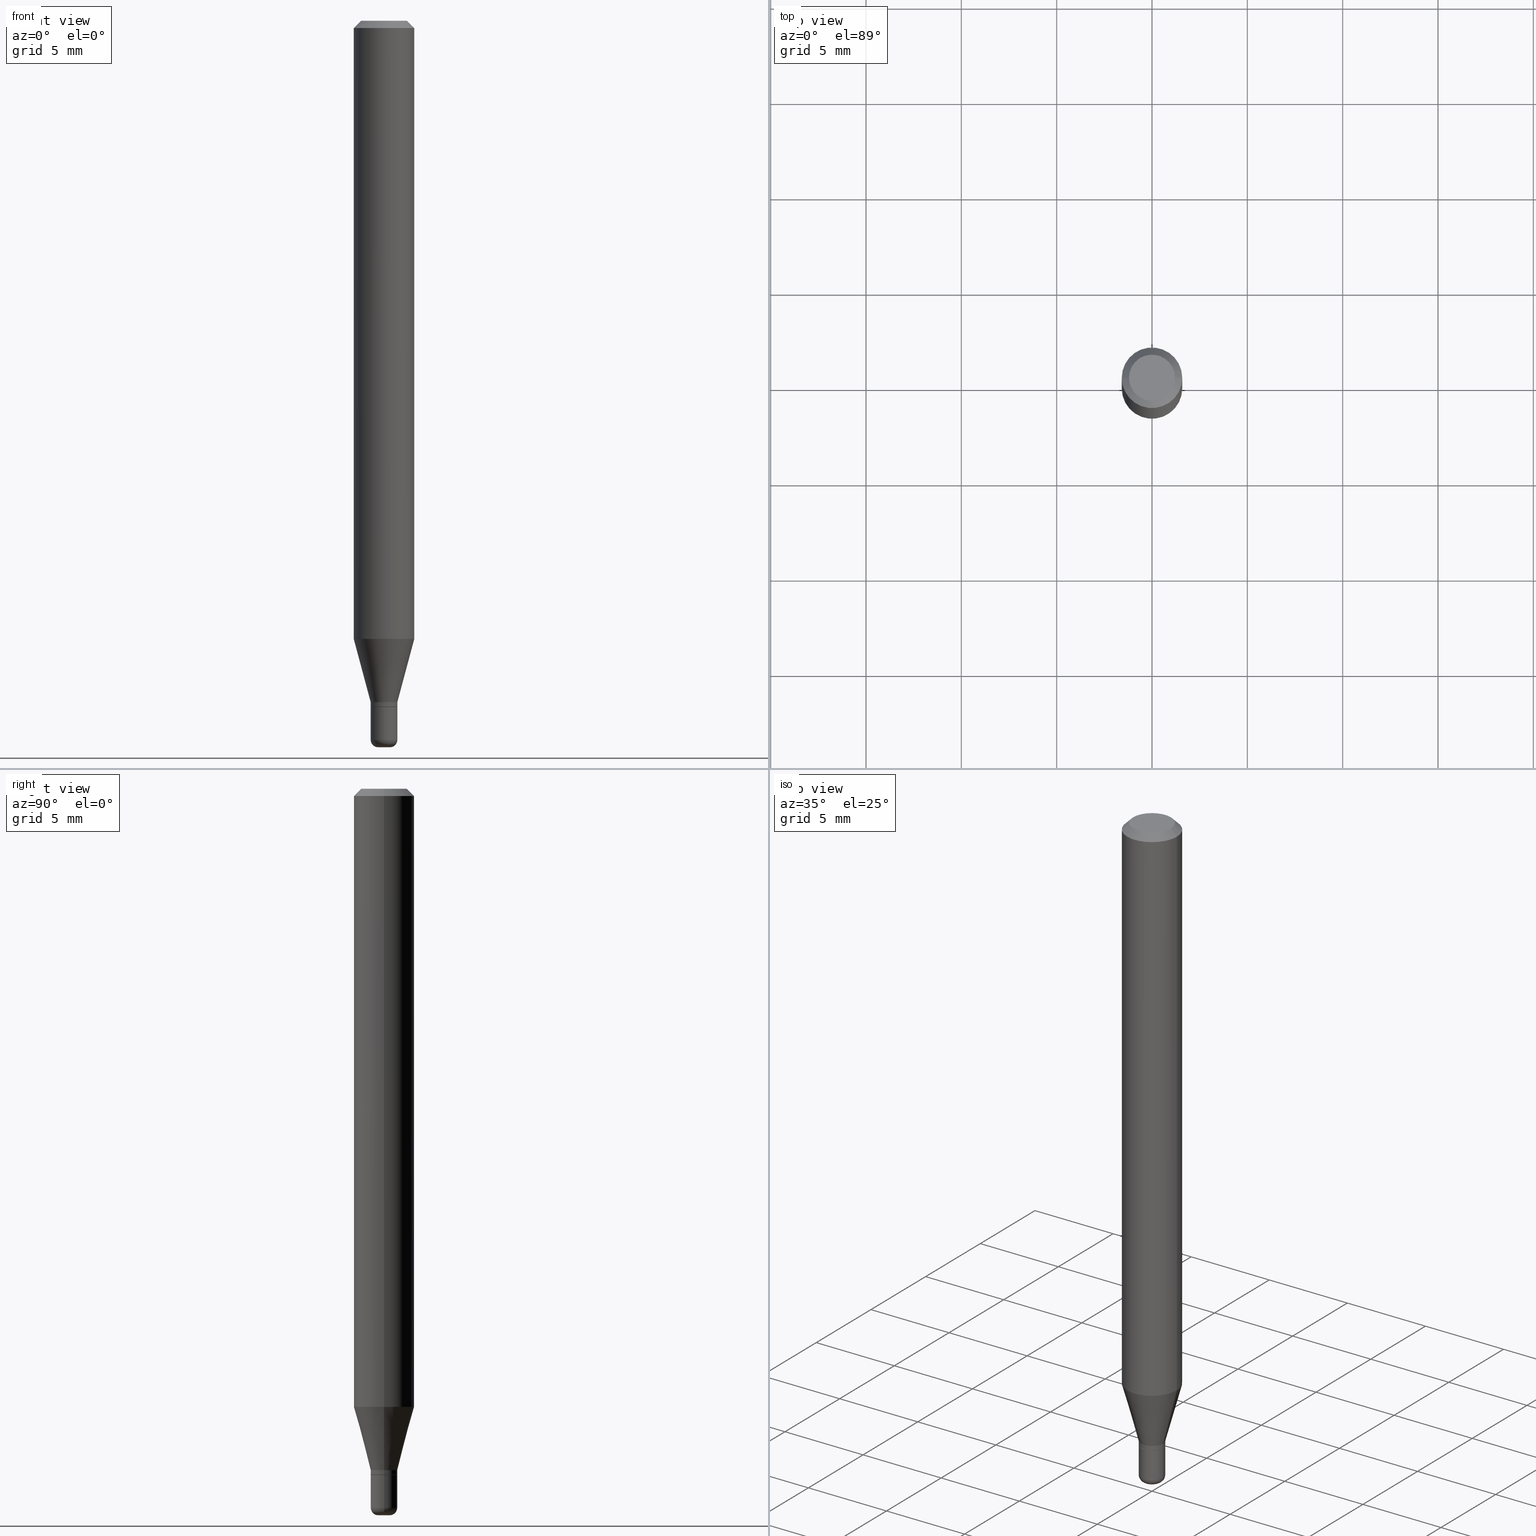
[diagram: canonical four-view strip — front | top / right | iso, engineering-drawing reading convention]
A machine part, canonical four-view strip (front | top / right | iso — engineering-drawing reading convention). The complete STEP part file that produces these views, byte-faithful:
ISO-10303-21;
HEADER;
FILE_DESCRIPTION (( 'STEP AP203' ),
    '1' );
FILE_NAME ('09156.STEP',
    '2024-02-29T22:46:03',
    ( '' ),
    ( '' ),
    'SwSTEP 2.0',
    'SolidWorks 2023',
    '' );
FILE_SCHEMA (( 'CONFIG_CONTROL_DESIGN' ));
ENDSEC;

DATA;
#1 = PRODUCT_DEFINITION ( 'UNKNOWN', '', #201, #255 ) ;
#2 = EDGE_CURVE ( 'NONE', #55, #220, #137, .T. ) ;
#3 = EDGE_LOOP ( 'NONE', ( #78, #169, #444, #175 ) ) ;
#4 = DIRECTION ( 'NONE',  ( 1.000000000000000000, -6.982962677686280121E-15, 0.000000000000000000 ) ) ;
#5 = AXIS2_PLACEMENT_3D ( 'NONE', #226, #158, #426 ) ;
#6 = SHAPE_DEFINITION_REPRESENTATION ( #211, #334 ) ;
#7 = ORIENTED_EDGE ( 'NONE', *, *, #319, .F. ) ;
#8 = EDGE_CURVE ( 'NONE', #309, #214, #240, .T. ) ;
#9 = VERTEX_POINT ( 'NONE', #450 ) ;
#10 = DIRECTION ( 'NONE',  ( -2.445468806185136597E-29, 3.491481338843145583E-15, 1.000000000000000000 ) ) ;
#11 = ADVANCED_FACE ( 'NONE', ( #105 ), #246, .T. ) ;
#12 = ORIENTED_EDGE ( 'NONE', *, *, #300, .F. ) ;
#13 = CARTESIAN_POINT ( 'NONE',  ( 0.06250000000000000000, -4.888073874380378612E-16, -0.01499999999999970281 ) ) ;
#14 = ORIENTED_EDGE ( 'NONE', *, *, #159, .F. ) ;
#15 = AXIS2_PLACEMENT_3D ( 'NONE', #508, #466, #344 ) ;
#16 = LINE ( 'NONE', #54, #470 ) ;
#17 = ORIENTED_EDGE ( 'NONE', *, *, #73, .F. ) ;
#18 = EDGE_CURVE ( 'NONE', #322, #280, #421, .T. ) ;
#19 = APPROVAL_DATE_TIME ( #186, #388 ) ;
#20 = LINE ( 'NONE', #182, #93 ) ;
#21 = CARTESIAN_POINT ( 'NONE',  ( 3.440774610302487541E-29, -4.912514243752305891E-15, -1.407000000000000028 ) ) ;
#22 = ORIENTED_EDGE ( 'NONE', *, *, #496, .F. ) ;
#23 = APPROVAL_DATE_TIME ( #221, #235 ) ;
#24 = DIRECTION ( 'NONE',  ( -2.445468806185136597E-29, 3.491481338843145583E-15, 1.000000000000000000 ) ) ;
#25 = VECTOR ( 'NONE', #510, 39.37007874015748143 ) ;
#26 = CIRCLE ( 'NONE', #147, 0.01499999999999998730 ) ;
#27 =( CONVERSION_BASED_UNIT ( 'INCH', #292 ) LENGTH_UNIT ( ) NAMED_UNIT ( #464 ) );
#28 = EDGE_CURVE ( 'NONE', #9, #115, #453, .T. ) ;
#29 = CYLINDRICAL_SURFACE ( 'NONE', #476, 0.02749999999999999667 ) ;
#30 = CARTESIAN_POINT ( 'NONE',  ( 0.06250000000000000000, -4.364351673553916694E-16, 3.047610484872459871E-30 ) ) ;
#31 = ORIENTED_EDGE ( 'NONE', *, *, #319, .T. ) ;
#32 = CARTESIAN_POINT ( 'NONE',  ( 0.000000000000000000, 0.000000000000000000, 0.000000000000000000 ) ) ;
#33 = CARTESIAN_POINT ( 'NONE',  ( -0.02699999999999999623, -4.752933291311399907E-15, -1.417000000000000259 ) ) ;
#34 = ORIENTED_EDGE ( 'NONE', *, *, #289, .F. ) ;
#35 = CALENDAR_DATE ( 2024, 29, 2 ) ;
#36 = CARTESIAN_POINT ( 'NONE',  ( -0.02699999999999999623, -4.755582518485511109E-15, -1.417000000000000259 ) ) ;
#37 = AXIS2_PLACEMENT_3D ( 'NONE', #302, #86, #311 ) ;
#38 = CARTESIAN_POINT ( 'NONE',  ( 3.668203209277632395E-31, -5.237222008264614861E-17, -0.01499999999999970281 ) ) ;
#39 = EDGE_CURVE ( 'NONE', #472, #108, #242, .T. ) ;
#40 = VERTEX_POINT ( 'NONE', #404 ) ;
#41 = ORIENTED_EDGE ( 'NONE', *, *, #276, .F. ) ;
#42 = DIRECTION ( 'NONE',  ( -1.000000000000000000, 6.982962677686266711E-15, 0.000000000000000000 ) ) ;
#43 = LINE ( 'NONE', #229, #397 ) ;
#44 = FACE_OUTER_BOUND ( 'NONE', #269, .T. ) ;
#45 = AXIS2_PLACEMENT_3D ( 'NONE', #456, #416, #111 ) ;
#46 = CARTESIAN_POINT ( 'NONE',  ( 3.465229298364339647E-29, -4.947429057140738329E-15, -1.417000000000000259 ) ) ;
#47 = LINE ( 'NONE', #132, #490 ) ;
#48 = CC_DESIGN_SECURITY_CLASSIFICATION ( #52, ( #201 ) ) ;
#49 = ORIENTED_EDGE ( 'NONE', *, *, #8, .F. ) ;
#50 = ORIENTED_EDGE ( 'NONE', *, *, #85, .T. ) ;
#51 = CYLINDRICAL_SURFACE ( 'NONE', #82, 0.06250000000000000000 ) ;
#52 = SECURITY_CLASSIFICATION ( '', '', #117 ) ;
#53 = EDGE_LOOP ( 'NONE', ( #199, #119, #380, #393 ) ) ;
#54 = CARTESIAN_POINT ( 'NONE',  ( 0.02750000000000000014, -1.920314736363723444E-16, 1.340948613343882413E-30 ) ) ;
#55 = VERTEX_POINT ( 'NONE', #13 ) ;
#56 = AXIS2_PLACEMENT_3D ( 'NONE', #46, #231, #135 ) ;
#57 = EDGE_CURVE ( 'NONE', #40, #374, #498, .T. ) ;
#58 = ORIENTED_EDGE ( 'NONE', *, *, #103, .F. ) ;
#59 = ORIENTED_EDGE ( 'NONE', *, *, #124, .F. ) ;
#60 = CARTESIAN_POINT ( 'NONE',  ( 3.668203209277632395E-31, -5.237222008264614861E-17, -0.01499999999999970281 ) ) ;
#61 = ORGANIZATION ( 'UNSPECIFIED', 'UNSPECIFIED', '' ) ;
#62 = DIRECTION ( 'NONE',  ( -1.000000000000000000, 6.982962677686265922E-15, -4.876176775795935793E-29 ) ) ;
#63 = EDGE_LOOP ( 'NONE', ( #471, #485, #17, #266 ) ) ;
#64 = ORIENTED_EDGE ( 'NONE', *, *, #85, .F. ) ;
#65 = VECTOR ( 'NONE', #197, 39.37007874015748854 ) ;
#66 = EDGE_LOOP ( 'NONE', ( #238, #410 ) ) ;
#67 = DIRECTION ( 'NONE',  ( -2.445468806185136597E-29, 3.491481338843145583E-15, 1.000000000000000000 ) ) ;
#68 = EDGE_LOOP ( 'NONE', ( #208, #31, #83, #64 ) ) ;
#69 = CARTESIAN_POINT ( 'NONE',  ( -0.02749999999999998973, -4.870740170327377186E-15, -1.485000000000000098 ) ) ;
#70 = PERSON_AND_ORGANIZATION ( #333, #61 ) ;
#71 = CARTESIAN_POINT ( 'NONE',  ( 3.631521177184928138E-29, -5.184849788182071492E-15, -1.485000000000000098 ) ) ;
#72 = DIRECTION ( 'NONE',  ( -2.445468806185136597E-29, 3.491481338843145583E-15, 1.000000000000000000 ) ) ;
#73 = EDGE_CURVE ( 'NONE', #204, #472, #227, .T. ) ;
#74 = ADVANCED_FACE ( 'NONE', ( #173 ), #400, .T. ) ;
#75 = APPROVAL_STATUS ( 'not_yet_approved' ) ;
#76 = CARTESIAN_POINT ( 'NONE',  ( 3.582686580359766038E-29, -5.359686688179453325E-15, -1.500000000000000222 ) ) ;
#77 = LINE ( 'NONE', #30, #337 ) ;
#78 = ORIENTED_EDGE ( 'NONE', *, *, #127, .T. ) ;
#79 = AXIS2_PLACEMENT_3D ( 'NONE', #60, #10, #285 ) ;
#80 = VECTOR ( 'NONE', #320, 39.37007874015748143 ) ;
#81 = DIRECTION ( 'NONE',  ( 1.000000000000000000, -6.982962677686265922E-15, 4.876176775795935793E-29 ) ) ;
#82 = AXIS2_PLACEMENT_3D ( 'NONE', #348, #359, #428 ) ;
#83 = ORIENTED_EDGE ( 'NONE', *, *, #2, .T. ) ;
#84 = CARTESIAN_POINT ( 'NONE',  ( -0.02750000000000000708, -4.364738262031039467E-15, -1.407000000000000028 ) ) ;
#85 = EDGE_CURVE ( 'NONE', #9, #220, #178, .T. ) ;
#86 = DIRECTION ( 'NONE',  ( -2.438088387897960049E-29, 3.491481338843145188E-15, 1.000000000000000000 ) ) ;
#87 = ADVANCED_FACE ( 'NONE', ( #403 ), #179, .T. ) ;
#88 = CARTESIAN_POINT ( 'NONE',  ( 0.02699999999999999623, -5.135969049438267025E-15, -1.417000000000000259 ) ) ;
#89 = CONICAL_SURFACE ( 'NONE', #402, 0.06250000000000000000, 0.7853981633974488341 ) ;
#90 = EDGE_LOOP ( 'NONE', ( #7, #200, #50, #130 ) ) ;
#91 = CALENDAR_DATE ( 2024, 29, 2 ) ;
#92 = DIRECTION ( 'NONE',  ( -2.445468806185136597E-29, 3.491481338843145583E-15, 1.000000000000000000 ) ) ;
#93 = VECTOR ( 'NONE', #332, 39.37007874015748854 ) ;
#94 = CARTESIAN_POINT ( 'NONE',  ( 3.121343126147216904E-29, -4.456450742493864567E-15, -1.276378221735089635 ) ) ;
#95 = CC_DESIGN_APPROVAL ( #235, ( #1 ) ) ;
#96 = ORIENTED_EDGE ( 'NONE', *, *, #347, .T. ) ;
#97 = VECTOR ( 'NONE', #253, 39.37007874015748143 ) ;
#98 = AXIS2_PLACEMENT_3D ( 'NONE', #76, #251, #81 ) ;
#99 = EDGE_LOOP ( 'NONE', ( #457, #174, #291, #194 ) ) ;
#100 = ADVANCED_FACE ( 'NONE', ( #407 ), #294, .T. ) ;
#101 = MANIFOLD_SOLID_BREP ( 'Body-Move/Copy2[1]', #106 ) ;
#102 = DIRECTION ( 'NONE',  ( -2.445468806185136877E-29, 3.491481338843145188E-15, 1.000000000000000000 ) ) ;
#103 = EDGE_CURVE ( 'NONE', #374, #445, #488, .T. ) ;
#104 = DIRECTION ( 'NONE',  ( 1.000000000000000000, -6.982962677686265922E-15, 4.876176775795935232E-29 ) ) ;
#105 = FACE_OUTER_BOUND ( 'NONE', #281, .T. ) ;
#106 = CLOSED_SHELL ( 'NONE', ( #100, #171, #440, #74, #487, #166 ) ) ;
#107 = AXIS2_PLACEMENT_3D ( 'NONE', #431, #394, #42 ) ;
#108 = VERTEX_POINT ( 'NONE', #84 ) ;
#109 = FACE_OUTER_BOUND ( 'NONE', #230, .T. ) ;
#110 = APPROVAL_ROLE ( '' ) ;
#111 = DIRECTION ( 'NONE',  ( 1.000000000000000000, -6.982962677686262766E-15, 0.000000000000000000 ) ) ;
#112 = ORIENTED_EDGE ( 'NONE', *, *, #482, .T. ) ;
#113 = PERSON_AND_ORGANIZATION_ROLE ( 'design_supplier' ) ;
#114 = PLANE ( 'NONE',  #98 ) ;
#115 = VERTEX_POINT ( 'NONE', #378 ) ;
#116 = EDGE_CURVE ( 'NONE', #309, #204, #298, .T. ) ;
#117 = SECURITY_CLASSIFICATION_LEVEL ( 'unclassified' ) ;
#118 = DIRECTION ( 'NONE',  ( 1.000000000000000000, -6.982962677686282488E-15, 0.000000000000000000 ) ) ;
#119 = ORIENTED_EDGE ( 'NONE', *, *, #159, .T. ) ;
#120 = AXIS2_PLACEMENT_3D ( 'NONE', #441, #290, #243 ) ;
#121 = AXIS2_PLACEMENT_3D ( 'NONE', #71, #190, #118 ) ;
#122 =( NAMED_UNIT ( * ) SI_UNIT ( $, .STERADIAN. ) SOLID_ANGLE_UNIT ( ) );
#123 = DIRECTION ( 'NONE',  ( -2.445468806185136597E-29, 3.491481338843145583E-15, 1.000000000000000000 ) ) ;
#124 = EDGE_CURVE ( 'NONE', #413, #445, #517, .T. ) ;
#126 = DIRECTION ( 'NONE',  ( -1.000000000000000000, 7.105427357600997126E-15, 0.000000000000000000 ) ) ;
#125 = CC_DESIGN_PERSON_AND_ORGANIZATION_ASSIGNMENT ( #310, #273, ( #1 ) ) ;
#127 = EDGE_CURVE ( 'NONE', #280, #322, #247, .T. ) ;
#128 = FACE_OUTER_BOUND ( 'NONE', #358, .T. ) ;
#129 = CARTESIAN_POINT ( 'NONE',  ( 0.02749999999999999667, -1.920314736363722951E-16, 1.340948613343882063E-30 ) ) ;
#130 = ORIENTED_EDGE ( 'NONE', *, *, #467, .T. ) ;
#131 = AXIS2_PLACEMENT_3D ( 'NONE', #148, #325, #282 ) ;
#132 = CARTESIAN_POINT ( 'NONE',  ( -0.06250000000000000000, 4.440892098500626162E-16, -3.074334431409316114E-30 ) ) ;
#133 = AXIS2_PLACEMENT_3D ( 'NONE', #275, #317, #396 ) ;
#134 = PERSON_AND_ORGANIZATION ( #333, #61 ) ;
#135 = DIRECTION ( 'NONE',  ( 1.000000000000000000, -6.982962677686261977E-15, 0.000000000000000000 ) ) ;
#136 = EDGE_CURVE ( 'NONE', #143, #40, #422, .T. ) ;
#137 = CIRCLE ( 'NONE', #79, 0.06250000000000000000 ) ;
#138 = CIRCLE ( 'NONE', #133, 0.01250000000000000590 ) ;
#139 = ORIENTED_EDGE ( 'NONE', *, *, #467, .F. ) ;
#140 = EDGE_LOOP ( 'NONE', ( #58, #181, #484, #22 ) ) ;
#141 = DIRECTION ( 'NONE',  ( -2.445468806185136597E-29, 3.491481338843145583E-15, 1.000000000000000000 ) ) ;
#142 = AXIS2_PLACEMENT_3D ( 'NONE', #345, #160, #260 ) ;
#143 = VERTEX_POINT ( 'NONE', #306 ) ;
#144 = DIRECTION ( 'NONE',  ( -0.7071067811865479058, 2.468850131082261005E-15, -0.7071067811865471286 ) ) ;
#145 = CC_DESIGN_PERSON_AND_ORGANIZATION_ASSIGNMENT ( #134, #415, ( #52 ) ) ;
#146 = CARTESIAN_POINT ( 'NONE',  ( 3.631521177184928138E-29, -5.184849788182071492E-15, -1.485000000000000098 ) ) ;
#147 = AXIS2_PLACEMENT_3D ( 'NONE', #420, #346, #126 ) ;
#148 = CARTESIAN_POINT ( 'NONE',  ( -6.680649051745406845E-45, 9.538196290434862081E-31, 2.731847993664263218E-16 ) ) ;
#149 = DIRECTION ( 'NONE',  ( 1.000000000000000000, -6.982962677686262766E-15, 0.000000000000000000 ) ) ;
#150 =( NAMED_UNIT ( * ) PLANE_ANGLE_UNIT ( ) SI_UNIT ( $, .RADIAN. ) );
#151 = AXIS2_PLACEMENT_3D ( 'NONE', #437, #405, #62 ) ;
#152 = DIRECTION ( 'NONE',  ( -2.445468806185136597E-29, 3.491481338843145583E-15, 1.000000000000000000 ) ) ;
#153 = APPROVAL_ROLE ( '' ) ;
#154 = DIRECTION ( 'NONE',  ( 1.000000000000000000, -6.982962677686261977E-15, 0.000000000000000000 ) ) ;
#155 = APPROVAL_DATE_TIME ( #503, #363 ) ;
#156 = CARTESIAN_POINT ( 'NONE',  ( 3.440774610302487541E-29, -4.912514243752305891E-15, -1.407000000000000028 ) ) ;
#157 = PERSON_AND_ORGANIZATION ( #333, #61 ) ;
#158 = DIRECTION ( 'NONE',  ( -6.982962677686266711E-15, -1.000000000000000000, 3.491481338843145583E-15 ) ) ;
#159 = EDGE_CURVE ( 'NONE', #507, #374, #26, .T. ) ;
#160 = DIRECTION ( 'NONE',  ( 0.000000000000000000, 0.000000000000000000, 1.000000000000000000 ) ) ;
#161 = CARTESIAN_POINT ( 'NONE',  ( 3.440774610302487541E-29, -4.912514243752305891E-15, -1.407000000000000028 ) ) ;
#162 = ADVANCED_FACE ( 'NONE', ( #469 ), #256, .F. ) ;
#163 = CC_DESIGN_PERSON_AND_ORGANIZATION_ASSIGNMENT ( #468, #113, ( #201 ) ) ;
#164 = FACE_OUTER_BOUND ( 'NONE', #90, .T. ) ;
#165 = CARTESIAN_POINT ( 'NONE',  ( -0.01250000000000000590, -5.068927351071375460E-15, -1.500000000000000222 ) ) ;
#166 = ADVANCED_FACE ( 'NONE', ( #261 ), #114, .F. ) ;
#167 = CIRCLE ( 'NONE', #446, 0.02750000000000000014 ) ;
#168 = DIRECTION ( 'NONE',  ( -2.445468806185136597E-29, 3.491481338843145583E-15, 1.000000000000000000 ) ) ;
#169 = ORIENTED_EDGE ( 'NONE', *, *, #312, .T. ) ;
#170 =( LENGTH_UNIT ( ) NAMED_UNIT ( * ) SI_UNIT ( $, .METRE. ) );
#171 = ADVANCED_FACE ( 'NONE', ( #461 ), #29, .T. ) ;
#172 = EDGE_CURVE ( 'NONE', #214, #472, #459, .T. ) ;
#173 = FACE_OUTER_BOUND ( 'NONE', #140, .T. ) ;
#174 = ORIENTED_EDGE ( 'NONE', *, *, #276, .T. ) ;
#175 = ORIENTED_EDGE ( 'NONE', *, *, #482, .F. ) ;
#176 = CC_DESIGN_PERSON_AND_ORGANIZATION_ASSIGNMENT ( #341, #225, ( #449 ) ) ;
#177 = APPROVAL_PERSON_ORGANIZATION ( #372, #235, #335 ) ;
#178 = LINE ( 'NONE', #323, #218 ) ;
#179 = CYLINDRICAL_SURFACE ( 'NONE', #270, 0.02750000000000000014 ) ;
#180 = CLOSED_SHELL ( 'NONE', ( #87, #239, #366, #352, #451, #234, #506, #430, #265, #162, #362, #11 ) ) ;
#181 = ORIENTED_EDGE ( 'NONE', *, *, #215, .T. ) ;
#182 = CARTESIAN_POINT ( 'NONE',  ( 0.02750000000000000708, -5.104545717388678383E-15, -1.407000000000000028 ) ) ;
#183 = UNCERTAINTY_MEASURE_WITH_UNIT (LENGTH_MEASURE( 1.000000000000000082E-05 ), #27, 'distance_accuracy_value', 'NONE');
#184 = APPROVAL_STATUS ( 'not_yet_approved' ) ;
#185 = DIRECTION ( 'NONE',  ( 1.000000000000000000, -6.982962677686277755E-15, 0.000000000000000000 ) ) ;
#186 = DATE_AND_TIME ( #495, #315 ) ;
#187 = DIRECTION ( 'NONE',  ( -2.445468806185136597E-29, 3.491481338843145583E-15, 1.000000000000000000 ) ) ;
#188 = DIRECTION ( 'NONE',  ( -2.445468806185136877E-29, 3.491481338843145188E-15, 1.000000000000000000 ) ) ;
#189 = DIRECTION ( 'NONE',  ( 2.438088387897960049E-29, -3.491481338843145188E-15, -1.000000000000000000 ) ) ;
#190 = DIRECTION ( 'NONE',  ( -2.445468806185136597E-29, 3.491481338843145583E-15, 1.000000000000000000 ) ) ;
#191 = AXIS2_PLACEMENT_3D ( 'NONE', #94, #284, #149 ) ;
#192 = CIRCLE ( 'NONE', #56, 0.02699999999999999623 ) ;
#193 = EDGE_CURVE ( 'NONE', #409, #280, #20, .T. ) ;
#194 = ORIENTED_EDGE ( 'NONE', *, *, #18, .F. ) ;
#195 = AXIS2_PLACEMENT_3D ( 'NONE', #293, #382, #264 ) ;
#196 = CARTESIAN_POINT ( 'NONE',  ( 3.668203209277704895E-29, -5.237222008264718177E-15, -1.500000000000000222 ) ) ;
#197 = DIRECTION ( 'NONE',  ( -0.2588190451025211281, 5.211531920934547886E-15, 0.9659258262890679791 ) ) ;
#198 = ORIENTED_EDGE ( 'NONE', *, *, #127, .F. ) ;
#199 = ORIENTED_EDGE ( 'NONE', *, *, #436, .T. ) ;
#200 = ORIENTED_EDGE ( 'NONE', *, *, #28, .F. ) ;
#201 = PRODUCT_DEFINITION_FORMATION_WITH_SPECIFIED_SOURCE ( 'ANY', '', #449, .NOT_KNOWN. ) ;
#202 = ORIENTED_EDGE ( 'NONE', *, *, #136, .T. ) ;
#203 = CIRCLE ( 'NONE', #121, 0.02749999999999998973 ) ;
#204 = VERTEX_POINT ( 'NONE', #377 ) ;
#205 = DIRECTION ( 'NONE',  ( 1.000000000000000000, -6.982962677686266711E-15, 4.876176775795935793E-29 ) ) ;
#206 = DIRECTION ( 'NONE',  ( 1.000000000000000000, -6.982962677686261977E-15, 0.000000000000000000 ) ) ;
#207 = ORIENTED_EDGE ( 'NONE', *, *, #300, .T. ) ;
#208 = ORIENTED_EDGE ( 'NONE', *, *, #395, .F. ) ;
#209 = AXIS2_PLACEMENT_3D ( 'NONE', #448, #213, #493 ) ;
#210 = VECTOR ( 'NONE', #497, 39.37007874015748143 ) ;
#211 = PRODUCT_DEFINITION_SHAPE ( 'NONE', 'NONE',  #1 ) ;
#212 = CARTESIAN_POINT ( 'NONE',  ( 3.668203209277632395E-31, -5.237222008264614861E-17, -0.01499999999999970281 ) ) ;
#213 = DIRECTION ( 'NONE',  ( -2.445468806185136597E-29, 3.491481338843145583E-15, 1.000000000000000000 ) ) ;
#214 = VERTEX_POINT ( 'NONE', #33 ) ;
#215 = EDGE_CURVE ( 'NONE', #374, #40, #203, .T. ) ;
#216 = FACE_OUTER_BOUND ( 'NONE', #99, .T. ) ;
#217 = DIRECTION ( 'NONE',  ( 1.000000000000000000, -6.982962677686265922E-15, 4.876176775795935232E-29 ) ) ;
#218 = VECTOR ( 'NONE', #144, 39.37007874015748143 ) ;
#219 = AXIS2_PLACEMENT_3D ( 'NONE', #504, #189, #342 ) ;
#220 = VERTEX_POINT ( 'NONE', #512 ) ;
#221 = DATE_AND_TIME ( #35, #274 ) ;
#222 = FACE_OUTER_BOUND ( 'NONE', #66, .T. ) ;
#223 = DIRECTION ( 'NONE',  ( -2.445468806185136597E-29, 3.491481338843145583E-15, 1.000000000000000000 ) ) ;
#224 = ORIENTED_EDGE ( 'NONE', *, *, #349, .T. ) ;
#225 = PERSON_AND_ORGANIZATION_ROLE ( 'design_owner' ) ;
#226 = CARTESIAN_POINT ( 'NONE',  ( 0.01250000000000000069, -5.272136821653149826E-15, -1.485000000000000098 ) ) ;
#227 = CIRCLE ( 'NONE', #307, 0.02749999999999999667 ) ;
#228 = CIRCLE ( 'NONE', #429, 0.01250000000000000590 ) ;
#229 = CARTESIAN_POINT ( 'NONE',  ( 0.06250000000000000000, -4.811533449433669144E-16, -0.01499999999999970281 ) ) ;
#230 = EDGE_LOOP ( 'NONE', ( #489, #236, #384, #12 ) ) ;
#231 = DIRECTION ( 'NONE',  ( -2.445468806185136597E-29, 3.491481338843145583E-15, 1.000000000000000000 ) ) ;
#232 = CARTESIAN_POINT ( 'NONE',  ( -0.02750000000000000708, -4.717114991418277772E-15, -1.407000000000000028 ) ) ;
#233 = CIRCLE ( 'NONE', #241, 0.04750000000000000749 ) ;
#234 = ADVANCED_FACE ( 'NONE', ( #216 ), #369, .T. ) ;
#235 = APPROVAL ( #386, 'UNSPECIFIED' ) ;
#236 = ORIENTED_EDGE ( 'NONE', *, *, #389, .T. ) ;
#237 = CARTESIAN_POINT ( 'NONE',  ( 0.000000000000000000, 0.000000000000000000, 0.000000000000000000 ) ) ;
#238 = ORIENTED_EDGE ( 'NONE', *, *, #28, .T. ) ;
#239 = ADVANCED_FACE ( 'NONE', ( #336 ), #308, .T. ) ;
#240 = CIRCLE ( 'NONE', #354, 0.02699999999999999623 ) ;
#241 = AXIS2_PLACEMENT_3D ( 'NONE', #425, #168, #313 ) ;
#242 = LINE ( 'NONE', #244, #277 ) ;
#243 = DIRECTION ( 'NONE',  ( 1.000000000000000000, -6.982962677686282488E-15, 0.000000000000000000 ) ) ;
#244 = CARTESIAN_POINT ( 'NONE',  ( -0.02750000000000000014, 1.953992523340275521E-16, -1.352707149820099181E-30 ) ) ;
#245 = ORIENTED_EDGE ( 'NONE', *, *, #124, .T. ) ;
#246 = CYLINDRICAL_SURFACE ( 'NONE', #209, 0.02750000000000000014 ) ;
#247 = CIRCLE ( 'NONE', #45, 0.06250000000000000000 ) ;
#248 = FACE_OUTER_BOUND ( 'NONE', #296, .T. ) ;
#249 = DIRECTION ( 'NONE',  ( 2.445468806185136597E-29, -3.491481338843145583E-15, -1.000000000000000000 ) ) ;
#250 = PERSON_AND_ORGANIZATION ( #333, #61 ) ;
#251 = DIRECTION ( 'NONE',  ( -2.438088387897960049E-29, 3.491481338843145188E-15, 1.000000000000000000 ) ) ;
#252 = CALENDAR_DATE ( 2024, 29, 2 ) ;
#253 = DIRECTION ( 'NONE',  ( 0.7071067811864267805, -2.468850131080992517E-15, 0.7071067811866682540 ) ) ;
#254 = ORIENTED_EDGE ( 'NONE', *, *, #103, .T. ) ;
#255 = DESIGN_CONTEXT ( 'detailed design', #479, 'design' ) ;
#256 = PLANE ( 'NONE',  #37 ) ;
#257 = CONICAL_SURFACE ( 'NONE', #107, 0.06250000000000000000, 0.7853981633974488341 ) ;
#258 = ORIENTED_EDGE ( 'NONE', *, *, #18, .T. ) ;
#259 = CYLINDRICAL_SURFACE ( 'NONE', #316, 0.06250000000000000000 ) ;
#260 = DIRECTION ( 'NONE',  ( 1.000000000000000000, 0.000000000000000000, 0.000000000000000000 ) ) ;
#261 = FACE_OUTER_BOUND ( 'NONE', #406, .T. ) ;
#262 = DIRECTION ( 'NONE',  ( -2.445468806185136597E-29, 3.491481338843145583E-15, 1.000000000000000000 ) ) ;
#263 = CC_DESIGN_APPROVAL ( #363, ( #52 ) ) ;
#264 = DIRECTION ( 'NONE',  ( 1.000000000000000000, -6.982962677686279332E-15, 0.000000000000000000 ) ) ;
#265 = ADVANCED_FACE ( 'NONE', ( #222 ), #339, .F. ) ;
#266 = ORIENTED_EDGE ( 'NONE', *, *, #116, .F. ) ;
#267 = CARTESIAN_POINT ( 'NONE',  ( 0.02750000000000000708, -5.104545717388678383E-15, -1.407000000000000028 ) ) ;
#268 = CARTESIAN_POINT ( 'NONE',  ( 0.06250000000000000000, -4.892885909849255447E-15, -1.276378221735089635 ) ) ;
#269 = EDGE_LOOP ( 'NONE', ( #245, #370 ) ) ;
#270 = AXIS2_PLACEMENT_3D ( 'NONE', #237, #141, #205 ) ;
#271 = TOROIDAL_SURFACE ( 'NONE', #379, 0.01250000000000000069, 0.01499999999999998557 ) ;
#272 = CARTESIAN_POINT ( 'NONE',  ( -0.06250000000000000000, -4.012361532643800373E-15, -1.276378221735089635 ) ) ;
#273 = PERSON_AND_ORGANIZATION_ROLE ( 'creator' ) ;
#274 = LOCAL_TIME ( 17, 46, 3.000000000000000000, #460 ) ;
#275 = CARTESIAN_POINT ( 'NONE',  ( 3.668203209277704895E-29, -5.237222008264718177E-15, -1.500000000000000222 ) ) ;
#276 = EDGE_CURVE ( 'NONE', #108, #409, #295, .T. ) ;
#277 = VECTOR ( 'NONE', #102, 39.37007874015748143 ) ;
#278 = AXIS2_PLACEMENT_3D ( 'NONE', #156, #516, #318 ) ;
#279 = ORIENTED_EDGE ( 'NONE', *, *, #399, .F. ) ;
#280 = VERTEX_POINT ( 'NONE', #268 ) ;
#281 = EDGE_LOOP ( 'NONE', ( #361, #207, #224, #41 ) ) ;
#282 = DIRECTION ( 'NONE',  ( 1.000000000000000000, -6.982962677686266711E-15, 4.852736867747365086E-29 ) ) ;
#283 = DIRECTION ( 'NONE',  ( 1.000000000000000000, -6.982962677686277755E-15, 0.000000000000000000 ) ) ;
#284 = DIRECTION ( 'NONE',  ( -2.445468806185136597E-29, 3.491481338843145583E-15, 1.000000000000000000 ) ) ;
#285 = DIRECTION ( 'NONE',  ( 1.000000000000000000, -6.982962677686266711E-15, 0.000000000000000000 ) ) ;
#286 = CARTESIAN_POINT ( 'NONE',  ( -0.02750000000000000014, -4.870740170327377186E-15, -1.417000000000000259 ) ) ;
#287 = ORIENTED_EDGE ( 'NONE', *, *, #389, .F. ) ;
#288 = DIRECTION ( 'NONE',  ( 1.000000000000000000, -6.982962677686279332E-15, 0.000000000000000000 ) ) ;
#289 = EDGE_CURVE ( 'NONE', #40, #413, #439, .T. ) ;
#290 = DIRECTION ( 'NONE',  ( -2.445468806185136597E-29, 3.491481338843145583E-15, 1.000000000000000000 ) ) ;
#291 = ORIENTED_EDGE ( 'NONE', *, *, #193, .T. ) ;
#292 = LENGTH_MEASURE_WITH_UNIT ( LENGTH_MEASURE( 0.02539999999999999897 ), #170 );
#293 = CARTESIAN_POINT ( 'NONE',  ( 3.465229298364339647E-29, -4.947429057140738329E-15, -1.417000000000000259 ) ) ;
#294 = TOROIDAL_SURFACE ( 'NONE', #401, 0.01250000000000000069, 0.01499999999999998557 ) ;
#295 = CIRCLE ( 'NONE', #278, 0.02750000000000000708 ) ;
#296 = EDGE_LOOP ( 'NONE', ( #364, #96, #198, #340 ) ) ;
#297 = DIRECTION ( 'NONE',  ( 1.000000000000000000, -6.982962677686277755E-15, 0.000000000000000000 ) ) ;
#298 = LINE ( 'NONE', #473, #97 ) ;
#299 = CARTESIAN_POINT ( 'NONE',  ( -0.02749999999999999667, -4.750284064137287918E-15, -1.416500000000000092 ) ) ;
#300 = EDGE_CURVE ( 'NONE', #472, #204, #518, .T. ) ;
#301 = MECHANICAL_CONTEXT ( 'NONE', #443, 'mechanical' ) ;
#302 = CARTESIAN_POINT ( 'NONE',  ( 3.465229298364339647E-29, -4.947429057140738329E-15, -1.417000000000000259 ) ) ;
#303 = CARTESIAN_POINT ( 'NONE',  ( 3.465229298364339647E-29, -4.947429057140738329E-15, -1.417000000000000259 ) ) ;
#304 = DIRECTION ( 'NONE',  ( -2.445468806185136877E-29, 3.491481338843145188E-15, 1.000000000000000000 ) ) ;
#305 = PERSON_AND_ORGANIZATION_ROLE ( 'creator' ) ;
#306 = CARTESIAN_POINT ( 'NONE',  ( 0.01250000000000000590, -5.324509041735797299E-15, -1.500000000000000222 ) ) ;
#307 = AXIS2_PLACEMENT_3D ( 'NONE', #365, #491, #4 ) ;
#308 = CONICAL_SURFACE ( 'NONE', #513, 0.02699999999999999623, 0.7853981633972775267 ) ;
#309 = VERTEX_POINT ( 'NONE', #88 ) ;
#310 = PERSON_AND_ORGANIZATION ( #333, #61 ) ;
#311 = DIRECTION ( 'NONE',  ( 1.000000000000000000, -6.982962677686265922E-15, 4.876176775795935793E-29 ) ) ;
#312 = EDGE_CURVE ( 'NONE', #322, #220, #47, .T. ) ;
#313 = DIRECTION ( 'NONE',  ( 1.000000000000000000, -6.982962677686266711E-15, 4.852736867747365086E-29 ) ) ;
#314 = EDGE_LOOP ( 'NONE', ( #324, #254, #59, #34 ) ) ;
#315 = LOCAL_TIME ( 17, 46, 3.000000000000000000, #419 ) ;
#316 = AXIS2_PLACEMENT_3D ( 'NONE', #32, #67, #499 ) ;
#317 = DIRECTION ( 'NONE',  ( -2.445468806185136597E-29, 3.491481338843145583E-15, 1.000000000000000000 ) ) ;
#318 = DIRECTION ( 'NONE',  ( 1.000000000000000000, -6.982962677686277755E-15, 0.000000000000000000 ) ) ;
#319 = EDGE_CURVE ( 'NONE', #115, #55, #43, .T. ) ;
#320 = DIRECTION ( 'NONE',  ( -2.445468806185136877E-29, 3.491481338843145188E-15, 1.000000000000000000 ) ) ;
#321 = DIRECTION ( 'NONE',  ( -2.445468806185136597E-29, 3.491481338843145583E-15, 1.000000000000000000 ) ) ;
#322 = VERTEX_POINT ( 'NONE', #272 ) ;
#323 = CARTESIAN_POINT ( 'NONE',  ( -0.06250000000000000000, 3.840629472727455270E-16, -0.01499999999999970281 ) ) ;
#324 = ORIENTED_EDGE ( 'NONE', *, *, #57, .T. ) ;
#325 = DIRECTION ( 'NONE',  ( -2.445468806185136597E-29, 3.491481338843145583E-15, 1.000000000000000000 ) ) ;
#326 = ORIENTED_EDGE ( 'NONE', *, *, #399, .T. ) ;
#327 = CIRCLE ( 'NONE', #360, 0.02750000000000000708 ) ;
#328 = CARTESIAN_POINT ( 'NONE',  ( 3.465229298364339647E-29, -4.947429057140738329E-15, -1.417000000000000259 ) ) ;
#329 =( GEOMETRIC_REPRESENTATION_CONTEXT ( 3 ) GLOBAL_UNCERTAINTY_ASSIGNED_CONTEXT ( ( #183 ) ) GLOBAL_UNIT_ASSIGNED_CONTEXT ( ( #27, #150, #122 ) ) REPRESENTATION_CONTEXT ( 'NONE', 'WORKASPACE' ) );
#330 = DIRECTION ( 'NONE',  ( -2.445468806185136597E-29, 3.491481338843145583E-15, 1.000000000000000000 ) ) ;
#331 = DATE_AND_TIME ( #91, #398 ) ;
#332 = DIRECTION ( 'NONE',  ( 0.2588190451025211281, 1.565188264969622954E-15, 0.9659258262890679791 ) ) ;
#333 = PERSON ( 'UNSPECIFIED', 'UNSPECIFIED', 'UNSPECIFIED', ('UNSPECIFIED'), ('UNSPECIFIED'), ('UNSPECIFIED') ) ;
#334 = ADVANCED_BREP_SHAPE_REPRESENTATION ( '09156', ( #101, #434, #142 ), #329 ) ;
#335 = APPROVAL_ROLE ( '' ) ;
#336 = FACE_OUTER_BOUND ( 'NONE', #63, .T. ) ;
#337 = VECTOR ( 'NONE', #188, 39.37007874015748143 ) ;
#338 = DATE_TIME_ROLE ( 'creation_date' ) ;
#339 = PLANE ( 'NONE',  #219 ) ;
#340 = ORIENTED_EDGE ( 'NONE', *, *, #193, .F. ) ;
#341 = PERSON_AND_ORGANIZATION ( #333, #61 ) ;
#342 = DIRECTION ( 'NONE',  ( -1.000000000000000000, 6.982962677686265922E-15, -4.876176775795935793E-29 ) ) ;
#343 = ORIENTED_EDGE ( 'NONE', *, *, #349, .F. ) ;
#344 = DIRECTION ( 'NONE',  ( 1.000000000000000000, -6.982962677686261977E-15, 0.000000000000000000 ) ) ;
#345 = CARTESIAN_POINT ( 'NONE',  ( 0.000000000000000000, 0.000000000000000000, 0.000000000000000000 ) ) ;
#346 = DIRECTION ( 'NONE',  ( 7.105427357601001859E-15, 1.000000000000000000, -3.491481338843145583E-15 ) ) ;
#347 = EDGE_CURVE ( 'NONE', #108, #322, #432, .T. ) ;
#348 = CARTESIAN_POINT ( 'NONE',  ( 0.000000000000000000, 0.000000000000000000, 0.000000000000000000 ) ) ;
#349 = EDGE_CURVE ( 'NONE', #204, #409, #16, .T. ) ;
#350 = CARTESIAN_POINT ( 'NONE',  ( 0.02750000000000000014, -5.139460530777110821E-15, -1.417000000000000259 ) ) ;
#351 = CC_DESIGN_DATE_AND_TIME_ASSIGNMENT ( #455, #338, ( #1 ) ) ;
#352 = ADVANCED_FACE ( 'NONE', ( #381 ), #259, .T. ) ;
#353 = EDGE_CURVE ( 'NONE', #409, #108, #327, .T. ) ;
#354 = AXIS2_PLACEMENT_3D ( 'NONE', #328, #330, #206 ) ;
#355 = AXIS2_PLACEMENT_3D ( 'NONE', #475, #92, #515 ) ;
#356 = ORIENTED_EDGE ( 'NONE', *, *, #73, .T. ) ;
#357 = APPROVAL_PERSON_ORGANIZATION ( #250, #363, #153 ) ;
#358 = EDGE_LOOP ( 'NONE', ( #494, #258, #112, #139 ) ) ;
#359 = DIRECTION ( 'NONE',  ( -2.445468806185136597E-29, 3.491481338843145583E-15, 1.000000000000000000 ) ) ;
#360 = AXIS2_PLACEMENT_3D ( 'NONE', #414, #152, #297 ) ;
#361 = ORIENTED_EDGE ( 'NONE', *, *, #39, .F. ) ;
#362 = ADVANCED_FACE ( 'NONE', ( #109 ), #454, .T. ) ;
#363 = APPROVAL ( #184, 'UNSPECIFIED' ) ;
#364 = ORIENTED_EDGE ( 'NONE', *, *, #353, .T. ) ;
#365 = CARTESIAN_POINT ( 'NONE',  ( 3.464006563961245725E-29, -4.945683316471316037E-15, -1.416500000000000092 ) ) ;
#366 = ADVANCED_FACE ( 'NONE', ( #375 ), #89, .T. ) ;
#367 = EDGE_LOOP ( 'NONE', ( #14, #326, #202, #423 ) ) ;
#368 = AXIS2_PLACEMENT_3D ( 'NONE', #442, #486, #104 ) ;
#369 = CONICAL_SURFACE ( 'NONE', #438, 0.02750000000000000708, 0.2617993877991498519 ) ;
#370 = ORIENTED_EDGE ( 'NONE', *, *, #496, .T. ) ;
#371 = DIRECTION ( 'NONE',  ( -1.000000000000000000, 6.982962677686266711E-15, 0.000000000000000000 ) ) ;
#372 = PERSON_AND_ORGANIZATION ( #333, #61 ) ;
#373 = CARTESIAN_POINT ( 'NONE',  ( -0.02749999999999999667, 1.953992523340275274E-16, -1.352707149820099006E-30 ) ) ;
#374 = VERTEX_POINT ( 'NONE', #69 ) ;
#375 = FACE_OUTER_BOUND ( 'NONE', #68, .T. ) ;
#376 = DATE_TIME_ROLE ( 'classification_date' ) ;
#377 = CARTESIAN_POINT ( 'NONE',  ( 0.02749999999999999667, -5.137714790107688529E-15, -1.416500000000000092 ) ) ;
#378 = CARTESIAN_POINT ( 'NONE',  ( 0.04750000000000000749, -4.035134999187568762E-16, 2.731847993664288856E-16 ) ) ;
#379 = AXIS2_PLACEMENT_3D ( 'NONE', #462, #223, #383 ) ;
#380 = ORIENTED_EDGE ( 'NONE', *, *, #57, .F. ) ;
#381 = FACE_OUTER_BOUND ( 'NONE', #3, .T. ) ;
#382 = DIRECTION ( 'NONE',  ( -2.445468806185136597E-29, 3.491481338843145583E-15, 1.000000000000000000 ) ) ;
#383 = DIRECTION ( 'NONE',  ( 1.000000000000000000, -6.982962677686282488E-15, 4.883557194083118506E-29 ) ) ;
#384 = ORIENTED_EDGE ( 'NONE', *, *, #116, .T. ) ;
#385 = CC_DESIGN_APPROVAL ( #388, ( #201 ) ) ;
#386 = APPROVAL_STATUS ( 'not_yet_approved' ) ;
#387 = DIRECTION ( 'NONE',  ( -2.445468806185136597E-29, 3.491481338843145583E-15, 1.000000000000000000 ) ) ;
#388 = APPROVAL ( #75, 'UNSPECIFIED' ) ;
#389 = EDGE_CURVE ( 'NONE', #214, #309, #192, .T. ) ;
#390 = DIRECTION ( 'NONE',  ( 0.7071067811865479058, -7.319954787623257623E-15, -0.7071067811865471286 ) ) ;
#391 = AXIS2_PLACEMENT_3D ( 'NONE', #38, #262, #417 ) ;
#392 = CC_DESIGN_DATE_AND_TIME_ASSIGNMENT ( #331, #376, ( #52 ) ) ;
#393 = ORIENTED_EDGE ( 'NONE', *, *, #136, .F. ) ;
#394 = DIRECTION ( 'NONE',  ( 2.445468806185136597E-29, -3.491481338843145583E-15, -1.000000000000000000 ) ) ;
#395 = EDGE_CURVE ( 'NONE', #115, #9, #233, .T. ) ;
#396 = DIRECTION ( 'NONE',  ( 1.000000000000000000, -6.982962677686291165E-15, 0.000000000000000000 ) ) ;
#397 = VECTOR ( 'NONE', #390, 39.37007874015748143 ) ;
#398 = LOCAL_TIME ( 17, 46, 3.000000000000000000, #501 ) ;
#399 = EDGE_CURVE ( 'NONE', #507, #143, #228, .T. ) ;
#400 = CYLINDRICAL_SURFACE ( 'NONE', #368, 0.02749999999999999667 ) ;
#401 = AXIS2_PLACEMENT_3D ( 'NONE', #146, #123, #412 ) ;
#402 = AXIS2_PLACEMENT_3D ( 'NONE', #212, #249, #371 ) ;
#403 = FACE_OUTER_BOUND ( 'NONE', #418, .T. ) ;
#404 = CARTESIAN_POINT ( 'NONE',  ( 0.02749999999999998973, -5.376881261818443984E-15, -1.485000000000000098 ) ) ;
#405 = DIRECTION ( 'NONE',  ( 2.438088387897960049E-29, -3.491481338843145188E-15, -1.000000000000000000 ) ) ;
#406 = EDGE_LOOP ( 'NONE', ( #511, #279 ) ) ;
#407 = FACE_OUTER_BOUND ( 'NONE', #53, .T. ) ;
#408 = CONICAL_SURFACE ( 'NONE', #483, 0.02750000000000000708, 0.2617993877991498519 ) ;
#409 = VERTEX_POINT ( 'NONE', #267 ) ;
#410 = ORIENTED_EDGE ( 'NONE', *, *, #395, .T. ) ;
#411 = APPLICATION_PROTOCOL_DEFINITION ( 'international standard', 'config_control_design', 1994, #443 ) ;
#412 = DIRECTION ( 'NONE',  ( 1.000000000000000000, -6.982962677686282488E-15, 4.883557194083118506E-29 ) ) ;
#413 = VERTEX_POINT ( 'NONE', #350 ) ;
#414 = CARTESIAN_POINT ( 'NONE',  ( 3.440774610302487541E-29, -4.912514243752305891E-15, -1.407000000000000028 ) ) ;
#415 = PERSON_AND_ORGANIZATION_ROLE ( 'classification_officer' ) ;
#416 = DIRECTION ( 'NONE',  ( -2.445468806185136597E-29, 3.491481338843145583E-15, 1.000000000000000000 ) ) ;
#417 = DIRECTION ( 'NONE',  ( 1.000000000000000000, -6.982962677686266711E-15, 0.000000000000000000 ) ) ;
#418 = EDGE_LOOP ( 'NONE', ( #356, #452, #492, #343 ) ) ;
#419 = COORDINATED_UNIVERSAL_TIME_OFFSET ( 5, 0, .BEHIND. ) ;
#420 = CARTESIAN_POINT ( 'NONE',  ( -0.01250000000000000069, -5.096031946212059284E-15, -1.485000000000000098 ) ) ;
#421 = CIRCLE ( 'NONE', #191, 0.06250000000000000000 ) ;
#422 = CIRCLE ( 'NONE', #5, 0.01499999999999998730 ) ;
#423 = ORIENTED_EDGE ( 'NONE', *, *, #215, .F. ) ;
#424 = CARTESIAN_POINT ( 'NONE',  ( 0.000000000000000000, 0.000000000000000000, 0.000000000000000000 ) ) ;
#425 = CARTESIAN_POINT ( 'NONE',  ( -6.680649051745406845E-45, 9.538196290434862081E-31, 2.731847993664263218E-16 ) ) ;
#426 = DIRECTION ( 'NONE',  ( 1.000000000000000000, -6.982962677686273810E-15, 0.000000000000000000 ) ) ;
#427 = LOCAL_TIME ( 17, 46, 3.000000000000000000, #433 ) ;
#428 = DIRECTION ( 'NONE',  ( 1.000000000000000000, -6.982962677686266711E-15, 4.876176775795935793E-29 ) ) ;
#429 = AXIS2_PLACEMENT_3D ( 'NONE', #196, #514, #478 ) ;
#430 = ADVANCED_FACE ( 'NONE', ( #164 ), #257, .T. ) ;
#431 = CARTESIAN_POINT ( 'NONE',  ( 3.668203209277632395E-31, -5.237222008264614861E-17, -0.01499999999999970281 ) ) ;
#432 = LINE ( 'NONE', #232, #65 ) ;
#433 = COORDINATED_UNIVERSAL_TIME_OFFSET ( 5, 0, .BEHIND. ) ;
#434 = MANIFOLD_SOLID_BREP ( 'Body-Move/Copy2[2]', #180 ) ;
#435 = DIRECTION ( 'NONE',  ( -2.445468806185136877E-29, 3.491481338843145188E-15, 1.000000000000000000 ) ) ;
#436 = EDGE_CURVE ( 'NONE', #143, #507, #138, .T. ) ;
#437 = CARTESIAN_POINT ( 'NONE',  ( 1.920314736364070050E-16, 0.02749999999999505271, -1.417000000000000259 ) ) ;
#438 = AXIS2_PLACEMENT_3D ( 'NONE', #161, #24, #185 ) ;
#439 = LINE ( 'NONE', #129, #80 ) ;
#440 = ADVANCED_FACE ( 'NONE', ( #44 ), #480, .F. ) ;
#441 = CARTESIAN_POINT ( 'NONE',  ( 3.631521177184928138E-29, -5.184849788182071492E-15, -1.485000000000000098 ) ) ;
#442 = CARTESIAN_POINT ( 'NONE',  ( 0.000000000000000000, 0.000000000000000000, 0.000000000000000000 ) ) ;
#443 = APPLICATION_CONTEXT ( 'configuration controlled 3d designs of mechanical parts and assemblies' ) ;
#444 = ORIENTED_EDGE ( 'NONE', *, *, #2, .F. ) ;
#445 = VERTEX_POINT ( 'NONE', #286 ) ;
#446 = AXIS2_PLACEMENT_3D ( 'NONE', #303, #321, #288 ) ;
#447 = EDGE_LOOP ( 'NONE', ( #49, #287 ) ) ;
#448 = CARTESIAN_POINT ( 'NONE',  ( 0.000000000000000000, 0.000000000000000000, 0.000000000000000000 ) ) ;
#449 = PRODUCT ( '09156', '09156', '', ( #301 ) ) ;
#450 = CARTESIAN_POINT ( 'NONE',  ( -0.04750000000000000749, 3.578768372314221353E-16, 2.731847993664239060E-16 ) ) ;
#451 = ADVANCED_FACE ( 'NONE', ( #248 ), #408, .T. ) ;
#452 = ORIENTED_EDGE ( 'NONE', *, *, #39, .T. ) ;
#453 = CIRCLE ( 'NONE', #131, 0.04750000000000000749 ) ;
#454 = CONICAL_SURFACE ( 'NONE', #15, 0.02699999999999999623, 0.7853981633972775267 ) ;
#455 = DATE_AND_TIME ( #477, #427 ) ;
#456 = CARTESIAN_POINT ( 'NONE',  ( 3.121343126147216904E-29, -4.456450742493864567E-15, -1.276378221735089635 ) ) ;
#457 = ORIENTED_EDGE ( 'NONE', *, *, #347, .F. ) ;
#458 = COORDINATED_UNIVERSAL_TIME_OFFSET ( 5, 0, .BEHIND. ) ;
#459 = LINE ( 'NONE', #36, #210 ) ;
#460 = COORDINATED_UNIVERSAL_TIME_OFFSET ( 5, 0, .BEHIND. ) ;
#461 = FACE_OUTER_BOUND ( 'NONE', #314, .T. ) ;
#462 = CARTESIAN_POINT ( 'NONE',  ( 3.631521177184928138E-29, -5.184849788182071492E-15, -1.485000000000000098 ) ) ;
#463 = CC_DESIGN_PERSON_AND_ORGANIZATION_ASSIGNMENT ( #70, #305, ( #201 ) ) ;
#464 = DIMENSIONAL_EXPONENTS ( 1.000000000000000000, 0.000000000000000000, 0.000000000000000000, 0.000000000000000000, 0.000000000000000000, 0.000000000000000000, 0.000000000000000000 ) ;
#465 = APPROVAL_PERSON_ORGANIZATION ( #157, #388, #110 ) ;
#466 = DIRECTION ( 'NONE',  ( -2.445468806185136597E-29, 3.491481338843145583E-15, 1.000000000000000000 ) ) ;
#467 = EDGE_CURVE ( 'NONE', #220, #55, #500, .T. ) ;
#468 = PERSON_AND_ORGANIZATION ( #333, #61 ) ;
#469 = FACE_OUTER_BOUND ( 'NONE', #447, .T. ) ;
#470 = VECTOR ( 'NONE', #304, 39.37007874015748143 ) ;
#471 = ORIENTED_EDGE ( 'NONE', *, *, #8, .T. ) ;
#472 = VERTEX_POINT ( 'NONE', #299 ) ;
#473 = CARTESIAN_POINT ( 'NONE',  ( 0.02699999999999999623, -5.135969049438267025E-15, -1.417000000000000259 ) ) ;
#474 = PRODUCT_RELATED_PRODUCT_CATEGORY ( 'detail', '', ( #449 ) ) ;
#475 = CARTESIAN_POINT ( 'NONE',  ( 3.464006563961245725E-29, -4.945683316471316037E-15, -1.416500000000000092 ) ) ;
#476 = AXIS2_PLACEMENT_3D ( 'NONE', #424, #387, #217 ) ;
#477 = CALENDAR_DATE ( 2024, 29, 2 ) ;
#478 = DIRECTION ( 'NONE',  ( 1.000000000000000000, -6.982962677686291165E-15, 0.000000000000000000 ) ) ;
#479 = APPLICATION_CONTEXT ( 'configuration controlled 3d designs of mechanical parts and assemblies' ) ;
#480 = PLANE ( 'NONE',  #151 ) ;
#481 = LOCAL_TIME ( 17, 46, 3.000000000000000000, #458 ) ;
#482 = EDGE_CURVE ( 'NONE', #280, #55, #77, .T. ) ;
#483 = AXIS2_PLACEMENT_3D ( 'NONE', #21, #72, #283 ) ;
#484 = ORIENTED_EDGE ( 'NONE', *, *, #289, .T. ) ;
#485 = ORIENTED_EDGE ( 'NONE', *, *, #172, .T. ) ;
#486 = DIRECTION ( 'NONE',  ( -2.445468806185136597E-29, 3.491481338843145583E-15, 1.000000000000000000 ) ) ;
#487 = ADVANCED_FACE ( 'NONE', ( #505 ), #271, .T. ) ;
#488 = LINE ( 'NONE', #373, #25 ) ;
#489 = ORIENTED_EDGE ( 'NONE', *, *, #172, .F. ) ;
#490 = VECTOR ( 'NONE', #435, 39.37007874015748143 ) ;
#491 = DIRECTION ( 'NONE',  ( -2.445468806185136597E-29, 3.491481338843145583E-15, 1.000000000000000000 ) ) ;
#492 = ORIENTED_EDGE ( 'NONE', *, *, #353, .F. ) ;
#493 = DIRECTION ( 'NONE',  ( 1.000000000000000000, -6.982962677686266711E-15, 4.876176775795935793E-29 ) ) ;
#494 = ORIENTED_EDGE ( 'NONE', *, *, #312, .F. ) ;
#495 = CALENDAR_DATE ( 2024, 29, 2 ) ;
#496 = EDGE_CURVE ( 'NONE', #445, #413, #167, .T. ) ;
#497 = DIRECTION ( 'NONE',  ( -0.7071067811864267805, 7.493145998869918709E-15, 0.7071067811866682540 ) ) ;
#498 = CIRCLE ( 'NONE', #120, 0.02749999999999998973 ) ;
#499 = DIRECTION ( 'NONE',  ( 1.000000000000000000, -6.982962677686266711E-15, 4.876176775795935793E-29 ) ) ;
#500 = CIRCLE ( 'NONE', #391, 0.06250000000000000000 ) ;
#501 = COORDINATED_UNIVERSAL_TIME_OFFSET ( 5, 0, .BEHIND. ) ;
#502 = CARTESIAN_POINT ( 'NONE',  ( 3.465229298364339647E-29, -4.947429057140738329E-15, -1.417000000000000259 ) ) ;
#503 = DATE_AND_TIME ( #252, #481 ) ;
#504 = CARTESIAN_POINT ( 'NONE',  ( 3.316907271900976589E-16, 0.04750000000000000749, -2.925296391183627249E-17 ) ) ;
#505 = FACE_OUTER_BOUND ( 'NONE', #367, .T. ) ;
#506 = ADVANCED_FACE ( 'NONE', ( #128 ), #51, .T. ) ;
#507 = VERTEX_POINT ( 'NONE', #165 ) ;
#508 = CARTESIAN_POINT ( 'NONE',  ( 3.465229298364339647E-29, -4.947429057140738329E-15, -1.417000000000000259 ) ) ;
#509 = APPLICATION_PROTOCOL_DEFINITION ( 'international standard', 'config_control_design', 1994, #479 ) ;
#510 = DIRECTION ( 'NONE',  ( -2.445468806185136877E-29, 3.491481338843145188E-15, 1.000000000000000000 ) ) ;
#511 = ORIENTED_EDGE ( 'NONE', *, *, #436, .F. ) ;
#512 = CARTESIAN_POINT ( 'NONE',  ( -0.06250000000000000000, -1.810322271438192615E-15, -0.01499999999999970281 ) ) ;
#513 = AXIS2_PLACEMENT_3D ( 'NONE', #502, #187, #154 ) ;
#514 = DIRECTION ( 'NONE',  ( -2.445468806185136597E-29, 3.491481338843145583E-15, 1.000000000000000000 ) ) ;
#515 = DIRECTION ( 'NONE',  ( 1.000000000000000000, -6.982962677686280121E-15, 0.000000000000000000 ) ) ;
#516 = DIRECTION ( 'NONE',  ( -2.445468806185136597E-29, 3.491481338843145583E-15, 1.000000000000000000 ) ) ;
#517 = CIRCLE ( 'NONE', #195, 0.02750000000000000014 ) ;
#518 = CIRCLE ( 'NONE', #355, 0.02749999999999999667 ) ;
ENDSEC;
END-ISO-10303-21;
